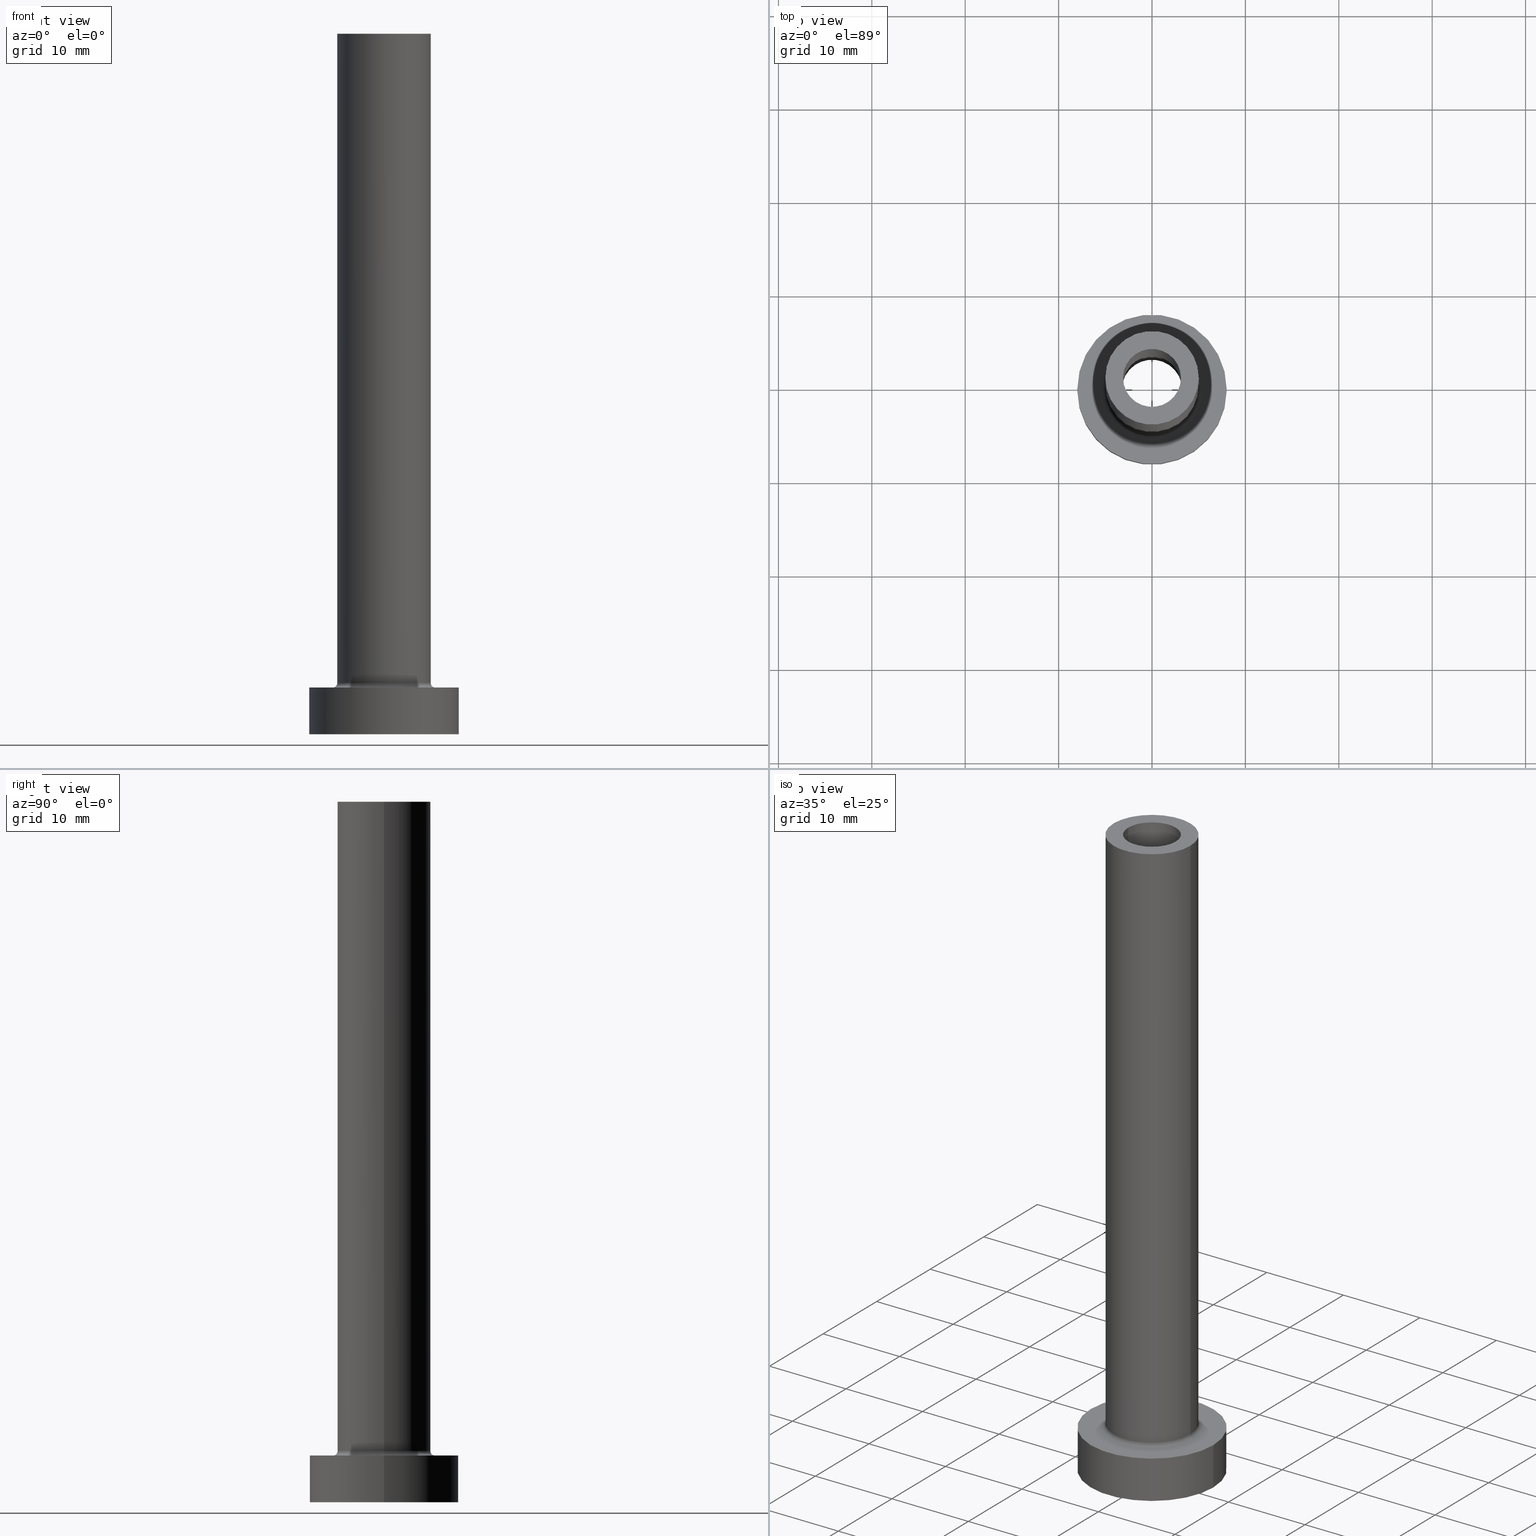
[diagram: canonical four-view strip — front | top / right | iso, engineering-drawing reading convention]
A machine part, canonical four-view strip (front | top / right | iso — engineering-drawing reading convention). The complete STEP part file that produces these views, byte-faithful:
ISO-10303-21;
HEADER;
FILE_DESCRIPTION (( 'STEP AP203' ),
    '1' );
FILE_NAME ('97cf.STEP',
    '2023-02-13T09:13:20',
    ( '' ),
    ( '' ),
    'SwSTEP 2.0',
    'SolidWorks 2019',
    '' );
FILE_SCHEMA (( 'CONFIG_CONTROL_DESIGN' ));
ENDSEC;

DATA;
#1 = CARTESIAN_POINT ( 'NONE',  ( 0.000000000000000000, 0.000000000000000000, 5.500000000000005329 ) ) ;
#2 = DIRECTION ( 'NONE',  ( -1.000000000000000000, 0.000000000000000000, 0.000000000000000000 ) ) ;
#3 = VERTEX_POINT ( 'NONE', #434 ) ;
#4 = CIRCLE ( 'NONE', #108, 5.500000000000000000 ) ;
#5 = DIRECTION ( 'NONE',  ( 0.000000000000000000, 0.000000000000000000, -1.000000000000000000 ) ) ;
#6 = EDGE_LOOP ( 'NONE', ( #386, #33 ) ) ;
#7 = DIRECTION ( 'NONE',  ( 1.000000000000000000, 0.000000000000000000, 0.000000000000000000 ) ) ;
#8 = ADVANCED_FACE ( 'NONE', ( #395 ), #402, .F. ) ;
#9 = DIRECTION ( 'NONE',  ( 1.000000000000000000, 0.000000000000000000, -0.000000000000000000 ) ) ;
#10 = AXIS2_PLACEMENT_3D ( 'NONE', #92, #443, #329 ) ;
#11 = CARTESIAN_POINT ( 'NONE',  ( 3.250000000000000444, 3.980102097228898231E-16, 0.000000000000000000 ) ) ;
#12 = VECTOR ( 'NONE', #167, 1000.000000000000000 ) ;
#13 =( NAMED_UNIT ( * ) PLANE_ANGLE_UNIT ( ) SI_UNIT ( $, .RADIAN. ) );
#14 = ORIENTED_EDGE ( 'NONE', *, *, #310, .F. ) ;
#15 = CIRCLE ( 'NONE', #237, 3.250000000000000444 ) ;
#16 = EDGE_CURVE ( 'NONE', #136, #439, #296, .T. ) ;
#17 = FACE_OUTER_BOUND ( 'NONE', #88, .T. ) ;
#18 = VERTEX_POINT ( 'NONE', #426 ) ;
#19 = CARTESIAN_POINT ( 'NONE',  ( 0.000000000000000000, 0.000000000000000000, 5.500000000000005329 ) ) ;
#20 = CIRCLE ( 'NONE', #171, 8.000000000000000000 ) ;
#21 = DIRECTION ( 'NONE',  ( 1.000000000000000000, 0.000000000000000000, 0.000000000000000000 ) ) ;
#22 = PLANE ( 'NONE',  #99 ) ;
#23 = ADVANCED_FACE ( 'NONE', ( #257 ), #248, .F. ) ;
#24 = VECTOR ( 'NONE', #380, 1000.000000000000000 ) ;
#25 = APPROVAL_ROLE ( '' ) ;
#26 = CIRCLE ( 'NONE', #267, 5.500000000000000000 ) ;
#27 = DATE_AND_TIME ( #414, #317 ) ;
#28 = EDGE_CURVE ( 'NONE', #252, #291, #4, .T. ) ;
#29 = ORIENTED_EDGE ( 'NONE', *, *, #324, .F. ) ;
#30 = PERSON ( 'NEUR�EN�', 'NEUR�EN�', 'NEUR�EN�', ('NEUR�EN�'), ('NEUR�EN�'), ('NEUR�EN�') ) ;
#31 = CIRCLE ( 'NONE', #48, 5.000000000000000000 ) ;
#32 = DIRECTION ( 'NONE',  ( 0.000000000000000000, 0.000000000000000000, -1.000000000000000000 ) ) ;
#33 = ORIENTED_EDGE ( 'NONE', *, *, #28, .T. ) ;
#34 = DATE_AND_TIME ( #306, #446 ) ;
#35 =( GEOMETRIC_REPRESENTATION_CONTEXT ( 3 ) GLOBAL_UNCERTAINTY_ASSIGNED_CONTEXT ( ( #192 ) ) GLOBAL_UNIT_ASSIGNED_CONTEXT ( ( #129, #13, #396 ) ) REPRESENTATION_CONTEXT ( 'NONE', 'WORKASPACE' ) );
#36 = EDGE_CURVE ( 'NONE', #161, #309, #385, .T. ) ;
#37 = APPLICATION_CONTEXT ( 'configuration controlled 3d designs of mechanical parts and assemblies' ) ;
#38 = ORIENTED_EDGE ( 'NONE', *, *, #100, .T. ) ;
#39 = CARTESIAN_POINT ( 'NONE',  ( 3.100000000000000089, 3.796405077356793932E-16, 75.00000000000001421 ) ) ;
#40 = ORIENTED_EDGE ( 'NONE', *, *, #116, .F. ) ;
#41 = CARTESIAN_POINT ( 'NONE',  ( 0.000000000000000000, 0.000000000000000000, 5.000000000000000000 ) ) ;
#42 = DIRECTION ( 'NONE',  ( -0.000000000000000000, -0.000000000000000000, -1.000000000000000000 ) ) ;
#43 = DIRECTION ( 'NONE',  ( -0.000000000000000000, -0.000000000000000000, -1.000000000000000000 ) ) ;
#44 = ADVANCED_FACE ( 'NONE', ( #351 ), #255, .T. ) ;
#45 = ORIENTED_EDGE ( 'NONE', *, *, #324, .T. ) ;
#46 = ORIENTED_EDGE ( 'NONE', *, *, #444, .F. ) ;
#47 = DIRECTION ( 'NONE',  ( 0.000000000000000000, 0.000000000000000000, 1.000000000000000000 ) ) ;
#48 = AXIS2_PLACEMENT_3D ( 'NONE', #448, #97, #298 ) ;
#49 = DIRECTION ( 'NONE',  ( 0.000000000000000000, 0.000000000000000000, 1.000000000000000000 ) ) ;
#50 = VERTEX_POINT ( 'NONE', #89 ) ;
#51 = CARTESIAN_POINT ( 'NONE',  ( -5.500000000000000000, 6.735557395310442023E-16, 5.500000000000005329 ) ) ;
#52 = EDGE_CURVE ( 'NONE', #330, #245, #153, .T. ) ;
#53 = CARTESIAN_POINT ( 'NONE',  ( 3.100000000000000089, 3.796405077356793932E-16, 30.00000000000001421 ) ) ;
#54 = ORIENTED_EDGE ( 'NONE', *, *, #384, .T. ) ;
#55 = DIRECTION ( 'NONE',  ( -0.000000000000000000, -0.000000000000000000, -1.000000000000000000 ) ) ;
#56 = FACE_OUTER_BOUND ( 'NONE', #76, .T. ) ;
#57 = DIRECTION ( 'NONE',  ( 1.000000000000000000, 0.000000000000000000, 0.000000000000000000 ) ) ;
#58 = FACE_BOUND ( 'NONE', #6, .T. ) ;
#59 = APPROVAL ( #407, 'NEUR�EN�' ) ;
#60 = DIRECTION ( 'NONE',  ( 1.000000000000000000, 0.000000000000000000, -0.000000000000000000 ) ) ;
#61 = CIRCLE ( 'NONE', #313, 3.100000000000000089 ) ;
#62 = APPLICATION_PROTOCOL_DEFINITION ( 'international standard', 'config_control_design', 1994, #85 ) ;
#63 = SECURITY_CLASSIFICATION ( '', '', #308 ) ;
#64 = EDGE_CURVE ( 'NONE', #202, #252, #254, .T. ) ;
#65 = PERSON_AND_ORGANIZATION_ROLE ( 'design_supplier' ) ;
#66 = LINE ( 'NONE', #340, #372 ) ;
#67 = PERSON_AND_ORGANIZATION_ROLE ( 'creator' ) ;
#68 = AXIS2_PLACEMENT_3D ( 'NONE', #155, #354, #281 ) ;
#69 = CARTESIAN_POINT ( 'NONE',  ( 8.000000000000000000, 9.797174393178825657E-16, 5.000000000000000000 ) ) ;
#70 = ORIENTED_EDGE ( 'NONE', *, *, #239, .F. ) ;
#71 = CARTESIAN_POINT ( 'NONE',  ( -5.000000000000000000, 0.000000000000000000, 75.00000000000001421 ) ) ;
#72 = EDGE_CURVE ( 'NONE', #376, #245, #61, .T. ) ;
#73 = CARTESIAN_POINT ( 'NONE',  ( 0.000000000000000000, 0.000000000000000000, 0.000000000000000000 ) ) ;
#74 = CC_DESIGN_PERSON_AND_ORGANIZATION_ASSIGNMENT ( #450, #230, ( #63 ) ) ;
#75 = CARTESIAN_POINT ( 'NONE',  ( 0.000000000000000000, 0.000000000000000000, 30.00000000000001421 ) ) ;
#76 = EDGE_LOOP ( 'NONE', ( #327, #433, #14, #177 ) ) ;
#77 = ADVANCED_BREP_SHAPE_REPRESENTATION ( '97cf', ( #377, #441 ), #35 ) ;
#78 = CYLINDRICAL_SURFACE ( 'NONE', #157, 3.250000000000000444 ) ;
#79 = VERTEX_POINT ( 'NONE', #185 ) ;
#80 = ORIENTED_EDGE ( 'NONE', *, *, #369, .F. ) ;
#81 = CARTESIAN_POINT ( 'NONE',  ( 0.000000000000000000, 0.000000000000000000, 5.000000000000000000 ) ) ;
#82 = VERTEX_POINT ( 'NONE', #11 ) ;
#83 = ORIENTED_EDGE ( 'NONE', *, *, #36, .T. ) ;
#84 = CARTESIAN_POINT ( 'NONE',  ( 0.000000000000000000, 0.000000000000000000, 75.00000000000001421 ) ) ;
#85 = APPLICATION_CONTEXT ( 'configuration controlled 3d designs of mechanical parts and assemblies' ) ;
#86 = CARTESIAN_POINT ( 'NONE',  ( 0.000000000000000000, 0.000000000000000000, 75.00000000000001421 ) ) ;
#87 = CARTESIAN_POINT ( 'NONE',  ( 0.000000000000000000, 0.000000000000000000, 30.00000000000001421 ) ) ;
#88 = EDGE_LOOP ( 'NONE', ( #46, #314, #80, #359 ) ) ;
#89 = CARTESIAN_POINT ( 'NONE',  ( -3.250000000000000444, 0.000000000000000000, 0.000000000000000000 ) ) ;
#90 = ADVANCED_FACE ( 'NONE', ( #159, #124 ), #22, .T. ) ;
#91 = LOCAL_TIME ( 10, 13, 20.00000000000000000, #337 ) ;
#92 = CARTESIAN_POINT ( 'NONE',  ( 0.000000000000000000, 0.000000000000000000, 75.00000000000001421 ) ) ;
#93 = DIRECTION ( 'NONE',  ( 0.000000000000000000, 0.000000000000000000, 1.000000000000000000 ) ) ;
#94 = CARTESIAN_POINT ( 'NONE',  ( 0.000000000000000000, 0.000000000000000000, 75.00000000000001421 ) ) ;
#95 = EDGE_CURVE ( 'NONE', #305, #174, #15, .T. ) ;
#96 = CARTESIAN_POINT ( 'NONE',  ( 0.000000000000000000, 0.000000000000000000, 0.000000000000000000 ) ) ;
#97 = DIRECTION ( 'NONE',  ( 0.000000000000000000, 0.000000000000000000, 1.000000000000000000 ) ) ;
#98 = AXIS2_PLACEMENT_3D ( 'NONE', #209, #320, #2 ) ;
#99 = AXIS2_PLACEMENT_3D ( 'NONE', #265, #93, #198 ) ;
#100 = EDGE_CURVE ( 'NONE', #256, #202, #31, .T. ) ;
#101 = CIRCLE ( 'NONE', #356, 8.000000000000000000 ) ;
#102 = PERSON_AND_ORGANIZATION ( #30, #287 ) ;
#103 = APPROVAL_PERSON_ORGANIZATION ( #199, #139, #271 ) ;
#104 = CALENDAR_DATE ( 2023, 13, 2 ) ;
#105 = ORIENTED_EDGE ( 'NONE', *, *, #132, .F. ) ;
#106 = EDGE_CURVE ( 'NONE', #309, #3, #367, .T. ) ;
#107 = PERSON_AND_ORGANIZATION_ROLE ( 'creator' ) ;
#108 = AXIS2_PLACEMENT_3D ( 'NONE', #41, #423, #388 ) ;
#109 = MECHANICAL_CONTEXT ( 'NONE', #37, 'mechanical' ) ;
#110 = DIRECTION ( 'NONE',  ( 0.000000000000000000, 0.000000000000000000, 1.000000000000000000 ) ) ;
#111 = ORIENTED_EDGE ( 'NONE', *, *, #390, .F. ) ;
#112 = CIRCLE ( 'NONE', #344, 8.000000000000000000 ) ;
#113 = DIRECTION ( 'NONE',  ( 0.000000000000000000, 0.000000000000000000, 1.000000000000000000 ) ) ;
#114 = CARTESIAN_POINT ( 'NONE',  ( 5.000000000000000000, 6.123233995736766282E-16, 5.500000000000005329 ) ) ;
#115 = DIRECTION ( 'NONE',  ( 0.000000000000000000, 0.000000000000000000, 1.000000000000000000 ) ) ;
#116 = EDGE_CURVE ( 'NONE', #50, #82, #292, .T. ) ;
#117 = DIRECTION ( 'NONE',  ( -0.000000000000000000, -0.000000000000000000, -1.000000000000000000 ) ) ;
#118 = EDGE_LOOP ( 'NONE', ( #54, #326, #383, #288 ) ) ;
#119 = AXIS2_PLACEMENT_3D ( 'NONE', #231, #145, #276 ) ;
#120 = CIRCLE ( 'NONE', #417, 3.250000000000000444 ) ;
#121 = CARTESIAN_POINT ( 'NONE',  ( 3.250000000000000444, 3.980102097228898231E-16, 30.00000000000001421 ) ) ;
#122 = EDGE_CURVE ( 'NONE', #330, #79, #299, .T. ) ;
#123 = FACE_OUTER_BOUND ( 'NONE', #457, .T. ) ;
#124 = FACE_OUTER_BOUND ( 'NONE', #188, .T. ) ;
#125 = DIRECTION ( 'NONE',  ( 0.000000000000000000, 0.000000000000000000, 1.000000000000000000 ) ) ;
#126 = DIRECTION ( 'NONE',  ( 0.000000000000000000, 0.000000000000000000, 1.000000000000000000 ) ) ;
#127 = DIRECTION ( 'NONE',  ( -0.000000000000000000, -0.000000000000000000, -1.000000000000000000 ) ) ;
#128 = ORIENTED_EDGE ( 'NONE', *, *, #227, .F. ) ;
#129 =( LENGTH_UNIT ( ) NAMED_UNIT ( * ) SI_UNIT ( .MILLI., .METRE. ) );
#130 = DIRECTION ( 'NONE',  ( 1.000000000000000000, 0.000000000000000000, 0.000000000000000000 ) ) ;
#131 = VECTOR ( 'NONE', #42, 1000.000000000000000 ) ;
#132 = EDGE_CURVE ( 'NONE', #18, #3, #101, .T. ) ;
#133 = CARTESIAN_POINT ( 'NONE',  ( -8.000000000000000000, 0.000000000000000000, 5.000000000000000000 ) ) ;
#134 = AXIS2_PLACEMENT_3D ( 'NONE', #1, #47, #437 ) ;
#135 = PERSON_AND_ORGANIZATION ( #30, #287 ) ;
#136 = VERTEX_POINT ( 'NONE', #71 ) ;
#137 = DATE_TIME_ROLE ( 'classification_date' ) ;
#138 = DIRECTION ( 'NONE',  ( 1.000000000000000000, 0.000000000000000000, 0.000000000000000000 ) ) ;
#139 = APPROVAL ( #170, 'NEUR�EN�' ) ;
#140 = AXIS2_PLACEMENT_3D ( 'NONE', #81, #117, #280 ) ;
#141 = DATE_AND_TIME ( #104, #389 ) ;
#142 = LINE ( 'NONE', #234, #24 ) ;
#143 = EDGE_LOOP ( 'NONE', ( #420, #429, #247, #381 ) ) ;
#144 = DATE_AND_TIME ( #341, #166 ) ;
#145 = DIRECTION ( 'NONE',  ( 0.000000000000000000, 0.000000000000000000, 1.000000000000000000 ) ) ;
#146 = EDGE_LOOP ( 'NONE', ( #40, #180 ) ) ;
#147 = CARTESIAN_POINT ( 'NONE',  ( 0.000000000000000000, 0.000000000000000000, 0.000000000000000000 ) ) ;
#148 = ORIENTED_EDGE ( 'NONE', *, *, #196, .F. ) ;
#149 = AXIS2_PLACEMENT_3D ( 'NONE', #445, #165, #404 ) ;
#150 = EDGE_CURVE ( 'NONE', #174, #50, #142, .T. ) ;
#151 = CARTESIAN_POINT ( 'NONE',  ( -5.000000000000000000, 0.000000000000000000, 75.00000000000001421 ) ) ;
#152 = CLOSED_SHELL ( 'NONE', ( #419, #23, #440, #44, #274, #223, #349, #452, #204, #90, #8, #249, #263, #406 ) ) ;
#153 = LINE ( 'NONE', #181, #393 ) ;
#154 = DIRECTION ( 'NONE',  ( -1.000000000000000000, 0.000000000000000000, 0.000000000000000000 ) ) ;
#155 = CARTESIAN_POINT ( 'NONE',  ( 0.000000000000000000, 0.000000000000000000, 39.19238815542512810 ) ) ;
#156 = EDGE_CURVE ( 'NONE', #161, #18, #66, .T. ) ;
#157 = AXIS2_PLACEMENT_3D ( 'NONE', #315, #214, #154 ) ;
#158 = CARTESIAN_POINT ( 'NONE',  ( 0.000000000000000000, 0.000000000000000000, 75.00000000000001421 ) ) ;
#159 = FACE_BOUND ( 'NONE', #375, .T. ) ;
#160 = CARTESIAN_POINT ( 'NONE',  ( 0.000000000000000000, 0.000000000000000000, 75.00000000000001421 ) ) ;
#161 = VERTEX_POINT ( 'NONE', #69 ) ;
#162 = FACE_OUTER_BOUND ( 'NONE', #163, .T. ) ;
#163 = EDGE_LOOP ( 'NONE', ( #29, #105 ) ) ;
#164 = CIRCLE ( 'NONE', #387, 0.5000000000000004441 ) ;
#165 = DIRECTION ( 'NONE',  ( 0.000000000000000000, 0.000000000000000000, 1.000000000000000000 ) ) ;
#166 = LOCAL_TIME ( 10, 13, 20.00000000000000000, #373 ) ;
#167 = DIRECTION ( 'NONE',  ( -0.000000000000000000, -0.000000000000000000, -1.000000000000000000 ) ) ;
#168 = CARTESIAN_POINT ( 'NONE',  ( 0.000000000000000000, 0.000000000000000000, 5.000000000000000000 ) ) ;
#169 = CC_DESIGN_PERSON_AND_ORGANIZATION_ASSIGNMENT ( #269, #370, ( #284 ) ) ;
#170 = APPROVAL_STATUS ( 'not_yet_approved' ) ;
#171 = AXIS2_PLACEMENT_3D ( 'NONE', #147, #113, #241 ) ;
#172 = PERSON_AND_ORGANIZATION ( #30, #287 ) ;
#173 = DIRECTION ( 'NONE',  ( 1.000000000000000000, 0.000000000000000000, 0.000000000000000000 ) ) ;
#174 = VERTEX_POINT ( 'NONE', #205 ) ;
#175 = LINE ( 'NONE', #408, #451 ) ;
#176 = CARTESIAN_POINT ( 'NONE',  ( -3.100000000000000089, 0.000000000000000000, 30.00000000000001421 ) ) ;
#177 = ORIENTED_EDGE ( 'NONE', *, *, #52, .F. ) ;
#178 = FACE_BOUND ( 'NONE', #244, .T. ) ;
#179 = DIRECTION ( 'NONE',  ( -0.000000000000000000, -0.000000000000000000, -1.000000000000000000 ) ) ;
#180 = ORIENTED_EDGE ( 'NONE', *, *, #338, .F. ) ;
#181 = CARTESIAN_POINT ( 'NONE',  ( -3.100000000000000089, 0.000000000000000000, 75.00000000000001421 ) ) ;
#182 = EDGE_CURVE ( 'NONE', #256, #291, #164, .T. ) ;
#183 = PLANE ( 'NONE',  #293 ) ;
#184 = ORIENTED_EDGE ( 'NONE', *, *, #384, .F. ) ;
#185 = CARTESIAN_POINT ( 'NONE',  ( 3.100000000000000089, 3.796405077356793932E-16, 75.00000000000001421 ) ) ;
#186 = VECTOR ( 'NONE', #5, 1000.000000000000000 ) ;
#187 = DIRECTION ( 'NONE',  ( 1.000000000000000000, 0.000000000000000000, 0.000000000000000000 ) ) ;
#188 = EDGE_LOOP ( 'NONE', ( #343, #218 ) ) ;
#189 = DIRECTION ( 'NONE',  ( 0.000000000000000000, 0.000000000000000000, 1.000000000000000000 ) ) ;
#190 = CYLINDRICAL_SURFACE ( 'NONE', #10, 3.100000000000000089 ) ;
#191 = ORIENTED_EDGE ( 'NONE', *, *, #16, .F. ) ;
#192 = UNCERTAINTY_MEASURE_WITH_UNIT (LENGTH_MEASURE( 1.000000000000000082E-05 ), #129, 'distance_accuracy_value', 'NONE');
#193 = DIRECTION ( 'NONE',  ( 1.000000000000000000, 0.000000000000000000, 0.000000000000000000 ) ) ;
#194 = DIRECTION ( 'NONE',  ( 0.000000000000000000, 0.000000000000000000, -1.000000000000000000 ) ) ;
#195 = CC_DESIGN_APPROVAL ( #328, ( #63 ) ) ;
#196 = EDGE_CURVE ( 'NONE', #305, #82, #175, .T. ) ;
#197 = DIRECTION ( 'NONE',  ( 1.000000000000000000, 0.000000000000000000, 0.000000000000000000 ) ) ;
#198 = DIRECTION ( 'NONE',  ( 1.000000000000000000, 0.000000000000000000, -0.000000000000000000 ) ) ;
#199 = PERSON_AND_ORGANIZATION ( #30, #287 ) ;
#200 = PRODUCT_DEFINITION_FORMATION_WITH_SPECIFIED_SOURCE ( 'LIBOVOLN�', '', #284, .NOT_KNOWN. ) ;
#201 = APPROVAL_DATE_TIME ( #34, #59 ) ;
#202 = VERTEX_POINT ( 'NONE', #456 ) ;
#203 = AXIS2_PLACEMENT_3D ( 'NONE', #211, #126, #316 ) ;
#204 = ADVANCED_FACE ( 'NONE', ( #282 ), #250, .T. ) ;
#205 = CARTESIAN_POINT ( 'NONE',  ( -3.250000000000000444, 0.000000000000000000, 30.00000000000001421 ) ) ;
#206 = AXIS2_PLACEMENT_3D ( 'NONE', #398, #332, #57 ) ;
#207 = CIRCLE ( 'NONE', #339, 3.250000000000000444 ) ;
#208 = CARTESIAN_POINT ( 'NONE',  ( -3.100000000000000089, 0.000000000000000000, 75.00000000000001421 ) ) ;
#209 = CARTESIAN_POINT ( 'NONE',  ( 0.000000000000000000, 0.000000000000000000, 5.000000000000000000 ) ) ;
#210 = ORIENTED_EDGE ( 'NONE', *, *, #72, .T. ) ;
#211 = CARTESIAN_POINT ( 'NONE',  ( 0.000000000000000000, 0.000000000000000000, 75.00000000000001421 ) ) ;
#212 = AXIS2_PLACEMENT_3D ( 'NONE', #84, #179, #346 ) ;
#213 = CARTESIAN_POINT ( 'NONE',  ( 0.000000000000000000, 0.000000000000000000, 5.000000000000000000 ) ) ;
#214 = DIRECTION ( 'NONE',  ( 0.000000000000000000, 0.000000000000000000, -1.000000000000000000 ) ) ;
#215 = AXIS2_PLACEMENT_3D ( 'NONE', #86, #43, #318 ) ;
#216 = DIRECTION ( 'NONE',  ( 1.000000000000000000, 0.000000000000000000, 0.000000000000000000 ) ) ;
#217 = CARTESIAN_POINT ( 'NONE',  ( -8.000000000000000000, 0.000000000000000000, 5.000000000000000000 ) ) ;
#218 = ORIENTED_EDGE ( 'NONE', *, *, #283, .T. ) ;
#219 = ORIENTED_EDGE ( 'NONE', *, *, #150, .T. ) ;
#220 = AXIS2_PLACEMENT_3D ( 'NONE', #168, #335, #361 ) ;
#221 = CARTESIAN_POINT ( 'NONE',  ( 0.000000000000000000, 0.000000000000000000, 5.000000000000000000 ) ) ;
#222 = ORIENTED_EDGE ( 'NONE', *, *, #310, .T. ) ;
#223 = ADVANCED_FACE ( 'NONE', ( #325 ), #322, .T. ) ;
#224 = FACE_BOUND ( 'NONE', #146, .T. ) ;
#225 = CARTESIAN_POINT ( 'NONE',  ( 0.000000000000000000, 0.000000000000000000, 30.00000000000001421 ) ) ;
#226 = PLANE ( 'NONE',  #279 ) ;
#227 = EDGE_CURVE ( 'NONE', #309, #161, #112, .T. ) ;
#228 = CIRCLE ( 'NONE', #232, 3.100000000000000089 ) ;
#229 = PLANE ( 'NONE',  #220 ) ;
#230 = PERSON_AND_ORGANIZATION_ROLE ( 'classification_officer' ) ;
#231 = CARTESIAN_POINT ( 'NONE',  ( 0.000000000000000000, 0.000000000000000000, 75.00000000000001421 ) ) ;
#232 = AXIS2_PLACEMENT_3D ( 'NONE', #94, #442, #197 ) ;
#233 = SHAPE_DEFINITION_REPRESENTATION ( #290, #77 ) ;
#234 = CARTESIAN_POINT ( 'NONE',  ( -3.250000000000000444, 0.000000000000000000, 39.19238815542512810 ) ) ;
#235 = ORIENTED_EDGE ( 'NONE', *, *, #390, .T. ) ;
#236 = COORDINATED_UNIVERSAL_TIME_OFFSET ( 1, 0, .AHEAD. ) ;
#237 = AXIS2_PLACEMENT_3D ( 'NONE', #225, #363, #302 ) ;
#238 = PERSON_AND_ORGANIZATION ( #30, #287 ) ;
#239 = EDGE_CURVE ( 'NONE', #79, #376, #382, .T. ) ;
#240 = AXIS2_PLACEMENT_3D ( 'NONE', #19, #125, #193 ) ;
#241 = DIRECTION ( 'NONE',  ( 1.000000000000000000, 0.000000000000000000, 0.000000000000000000 ) ) ;
#242 = CC_DESIGN_DATE_AND_TIME_ASSIGNMENT ( #144, #137, ( #63 ) ) ;
#243 = ORIENTED_EDGE ( 'NONE', *, *, #156, .F. ) ;
#244 = EDGE_LOOP ( 'NONE', ( #222, #210 ) ) ;
#245 = VERTEX_POINT ( 'NONE', #176 ) ;
#246 = DIRECTION ( 'NONE',  ( 1.000000000000000000, 0.000000000000000000, 0.000000000000000000 ) ) ;
#247 = ORIENTED_EDGE ( 'NONE', *, *, #132, .T. ) ;
#248 = CYLINDRICAL_SURFACE ( 'NONE', #68, 3.250000000000000444 ) ;
#249 = ADVANCED_FACE ( 'NONE', ( #277 ), #78, .F. ) ;
#250 = CYLINDRICAL_SURFACE ( 'NONE', #212, 5.000000000000000000 ) ;
#251 = ORIENTED_EDGE ( 'NONE', *, *, #444, .T. ) ;
#252 = VERTEX_POINT ( 'NONE', #350 ) ;
#253 = CARTESIAN_POINT ( 'NONE',  ( 0.000000000000000000, 0.000000000000000000, 5.000000000000000000 ) ) ;
#254 = CIRCLE ( 'NONE', #336, 0.5000000000000004441 ) ;
#255 = CYLINDRICAL_SURFACE ( 'NONE', #215, 5.000000000000000000 ) ;
#256 = VERTEX_POINT ( 'NONE', #114 ) ;
#257 = FACE_OUTER_BOUND ( 'NONE', #118, .T. ) ;
#258 = EDGE_CURVE ( 'NONE', #136, #202, #461, .T. ) ;
#259 = CC_DESIGN_APPROVAL ( #59, ( #200 ) ) ;
#260 = DIRECTION ( 'NONE',  ( -0.000000000000000000, -0.000000000000000000, -1.000000000000000000 ) ) ;
#261 = ORIENTED_EDGE ( 'NONE', *, *, #28, .F. ) ;
#262 = CC_DESIGN_PERSON_AND_ORGANIZATION_ASSIGNMENT ( #102, #65, ( #200 ) ) ;
#263 = ADVANCED_FACE ( 'NONE', ( #178, #123 ), #183, .F. ) ;
#264 = FACE_OUTER_BOUND ( 'NONE', #278, .T. ) ;
#265 = CARTESIAN_POINT ( 'NONE',  ( 0.000000000000000000, 0.000000000000000000, 75.00000000000001421 ) ) ;
#266 = CIRCLE ( 'NONE', #149, 5.000000000000000000 ) ;
#267 = AXIS2_PLACEMENT_3D ( 'NONE', #221, #260, #21 ) ;
#268 = CARTESIAN_POINT ( 'NONE',  ( 5.500000000000000000, 0.000000000000000000, 5.500000000000005329 ) ) ;
#269 = PERSON_AND_ORGANIZATION ( #30, #287 ) ;
#270 = CC_DESIGN_PERSON_AND_ORGANIZATION_ASSIGNMENT ( #172, #107, ( #304 ) ) ;
#271 = APPROVAL_ROLE ( '' ) ;
#272 = ORIENTED_EDGE ( 'NONE', *, *, #182, .T. ) ;
#273 = COORDINATED_UNIVERSAL_TIME_OFFSET ( 1, 0, .AHEAD. ) ;
#274 = ADVANCED_FACE ( 'NONE', ( #285 ), #418, .T. ) ;
#275 = PERSON_AND_ORGANIZATION ( #30, #287 ) ;
#276 = DIRECTION ( 'NONE',  ( 1.000000000000000000, 0.000000000000000000, 0.000000000000000000 ) ) ;
#277 = FACE_OUTER_BOUND ( 'NONE', #353, .T. ) ;
#278 = EDGE_LOOP ( 'NONE', ( #70, #400, #425, #397 ) ) ;
#279 = AXIS2_PLACEMENT_3D ( 'NONE', #294, #364, #60 ) ;
#280 = DIRECTION ( 'NONE',  ( -1.000000000000000000, 0.000000000000000000, 0.000000000000000000 ) ) ;
#281 = DIRECTION ( 'NONE',  ( -1.000000000000000000, 0.000000000000000000, 0.000000000000000000 ) ) ;
#282 = FACE_OUTER_BOUND ( 'NONE', #347, .T. ) ;
#283 = EDGE_CURVE ( 'NONE', #439, #136, #333, .T. ) ;
#284 = PRODUCT ( '97cf', '97cf', '', ( #109 ) ) ;
#285 = FACE_OUTER_BOUND ( 'NONE', #143, .T. ) ;
#286 = DIRECTION ( 'NONE',  ( -1.000000000000000000, 1.224646799147351482E-16, 0.000000000000000000 ) ) ;
#287 = ORGANIZATION ( 'NEUR�EN�', 'NEUR�EN�', '' ) ;
#288 = ORIENTED_EDGE ( 'NONE', *, *, #150, .F. ) ;
#289 = ORIENTED_EDGE ( 'NONE', *, *, #64, .F. ) ;
#290 = PRODUCT_DEFINITION_SHAPE ( 'NONE', 'NONE',  #304 ) ;
#291 = VERTEX_POINT ( 'NONE', #428 ) ;
#292 = CIRCLE ( 'NONE', #206, 3.250000000000000444 ) ;
#293 = AXIS2_PLACEMENT_3D ( 'NONE', #75, #424, #9 ) ;
#294 = CARTESIAN_POINT ( 'NONE',  ( 0.000000000000000000, 0.000000000000000000, 0.000000000000000000 ) ) ;
#295 = CARTESIAN_POINT ( 'NONE',  ( 5.000000000000000000, 6.123233995736766282E-16, 75.00000000000001421 ) ) ;
#296 = CIRCLE ( 'NONE', #203, 5.000000000000000000 ) ;
#297 = CARTESIAN_POINT ( 'NONE',  ( 0.000000000000000000, 0.000000000000000000, 30.00000000000001421 ) ) ;
#298 = DIRECTION ( 'NONE',  ( 1.000000000000000000, 0.000000000000000000, 0.000000000000000000 ) ) ;
#299 = CIRCLE ( 'NONE', #119, 3.100000000000000089 ) ;
#300 = APPROVAL_DATE_TIME ( #27, #139 ) ;
#301 = CIRCLE ( 'NONE', #431, 3.100000000000000089 ) ;
#302 = DIRECTION ( 'NONE',  ( 1.000000000000000000, 0.000000000000000000, 0.000000000000000000 ) ) ;
#303 = CALENDAR_DATE ( 2023, 13, 2 ) ;
#304 = PRODUCT_DEFINITION ( 'NEZN�M�', '', #200, #438 ) ;
#305 = VERTEX_POINT ( 'NONE', #121 ) ;
#306 = CALENDAR_DATE ( 2023, 13, 2 ) ;
#307 = VECTOR ( 'NONE', #55, 1000.000000000000000 ) ;
#308 = SECURITY_CLASSIFICATION_LEVEL ( 'unclassified' ) ;
#309 = VERTEX_POINT ( 'NONE', #217 ) ;
#310 = EDGE_CURVE ( 'NONE', #245, #376, #301, .T. ) ;
#311 = DIRECTION ( 'NONE',  ( 0.000000000000000000, 0.000000000000000000, 1.000000000000000000 ) ) ;
#312 = EDGE_LOOP ( 'NONE', ( #348, #235, #38, #436 ) ) ;
#313 = AXIS2_PLACEMENT_3D ( 'NONE', #430, #189, #216 ) ;
#314 = ORIENTED_EDGE ( 'NONE', *, *, #64, .T. ) ;
#315 = CARTESIAN_POINT ( 'NONE',  ( 0.000000000000000000, 0.000000000000000000, 39.19238815542512810 ) ) ;
#316 = DIRECTION ( 'NONE',  ( 1.000000000000000000, 0.000000000000000000, 0.000000000000000000 ) ) ;
#317 = LOCAL_TIME ( 10, 13, 20.00000000000000000, #273 ) ;
#318 = DIRECTION ( 'NONE',  ( -1.000000000000000000, 0.000000000000000000, 0.000000000000000000 ) ) ;
#319 = AXIS2_PLACEMENT_3D ( 'NONE', #213, #115, #7 ) ;
#320 = DIRECTION ( 'NONE',  ( -0.000000000000000000, -0.000000000000000000, -1.000000000000000000 ) ) ;
#321 = DIRECTION ( 'NONE',  ( 0.000000000000000000, 0.000000000000000000, -1.000000000000000000 ) ) ;
#322 = CYLINDRICAL_SURFACE ( 'NONE', #98, 8.000000000000000000 ) ;
#323 = ORIENTED_EDGE ( 'NONE', *, *, #458, .F. ) ;
#324 = EDGE_CURVE ( 'NONE', #3, #18, #20, .T. ) ;
#325 = FACE_OUTER_BOUND ( 'NONE', #413, .T. ) ;
#326 = ORIENTED_EDGE ( 'NONE', *, *, #196, .T. ) ;
#327 = ORIENTED_EDGE ( 'NONE', *, *, #122, .T. ) ;
#328 = APPROVAL ( #378, 'NEUR�EN�' ) ;
#329 = DIRECTION ( 'NONE',  ( -1.000000000000000000, 0.000000000000000000, 0.000000000000000000 ) ) ;
#330 = VERTEX_POINT ( 'NONE', #208 ) ;
#331 = DIRECTION ( 'NONE',  ( 0.000000000000000000, 0.000000000000000000, 1.000000000000000000 ) ) ;
#332 = DIRECTION ( 'NONE',  ( -0.000000000000000000, -0.000000000000000000, -1.000000000000000000 ) ) ;
#333 = CIRCLE ( 'NONE', #360, 5.000000000000000000 ) ;
#334 = LINE ( 'NONE', #295, #12 ) ;
#335 = DIRECTION ( 'NONE',  ( 0.000000000000000000, 0.000000000000000000, 1.000000000000000000 ) ) ;
#336 = AXIS2_PLACEMENT_3D ( 'NONE', #51, #392, #286 ) ;
#337 = COORDINATED_UNIVERSAL_TIME_OFFSET ( 1, 0, .AHEAD. ) ;
#338 = EDGE_CURVE ( 'NONE', #82, #50, #120, .T. ) ;
#339 = AXIS2_PLACEMENT_3D ( 'NONE', #297, #331, #130 ) ;
#340 = CARTESIAN_POINT ( 'NONE',  ( 8.000000000000000000, 9.797174393178825657E-16, 5.000000000000000000 ) ) ;
#341 = CALENDAR_DATE ( 2023, 13, 2 ) ;
#342 = DIRECTION ( 'NONE',  ( 0.000000000000000000, -1.000000000000000000, 0.000000000000000000 ) ) ;
#343 = ORIENTED_EDGE ( 'NONE', *, *, #16, .T. ) ;
#344 = AXIS2_PLACEMENT_3D ( 'NONE', #253, #49, #432 ) ;
#345 = ORIENTED_EDGE ( 'NONE', *, *, #116, .T. ) ;
#346 = DIRECTION ( 'NONE',  ( -1.000000000000000000, 0.000000000000000000, 0.000000000000000000 ) ) ;
#347 = EDGE_LOOP ( 'NONE', ( #111, #191, #410, #251 ) ) ;
#348 = ORIENTED_EDGE ( 'NONE', *, *, #283, .F. ) ;
#349 = ADVANCED_FACE ( 'NONE', ( #58, #368 ), #229, .T. ) ;
#350 = CARTESIAN_POINT ( 'NONE',  ( -5.500000000000000000, 6.735557395310442023E-16, 5.000000000000002665 ) ) ;
#351 = FACE_OUTER_BOUND ( 'NONE', #312, .T. ) ;
#352 = APPROVAL_PERSON_ORGANIZATION ( #238, #328, #25 ) ;
#353 = EDGE_LOOP ( 'NONE', ( #148, #415, #219, #345 ) ) ;
#354 = DIRECTION ( 'NONE',  ( 0.000000000000000000, 0.000000000000000000, -1.000000000000000000 ) ) ;
#355 = ORIENTED_EDGE ( 'NONE', *, *, #227, .T. ) ;
#356 = AXIS2_PLACEMENT_3D ( 'NONE', #416, #110, #138 ) ;
#357 = DIRECTION ( 'NONE',  ( 0.000000000000000000, 0.000000000000000000, 1.000000000000000000 ) ) ;
#358 = EDGE_LOOP ( 'NONE', ( #289, #421, #272, #261 ) ) ;
#359 = ORIENTED_EDGE ( 'NONE', *, *, #182, .F. ) ;
#360 = AXIS2_PLACEMENT_3D ( 'NONE', #158, #394, #246 ) ;
#361 = DIRECTION ( 'NONE',  ( 1.000000000000000000, 0.000000000000000000, -0.000000000000000000 ) ) ;
#362 = ORIENTED_EDGE ( 'NONE', *, *, #122, .F. ) ;
#363 = DIRECTION ( 'NONE',  ( 0.000000000000000000, 0.000000000000000000, 1.000000000000000000 ) ) ;
#364 = DIRECTION ( 'NONE',  ( 0.000000000000000000, 0.000000000000000000, 1.000000000000000000 ) ) ;
#365 = DIRECTION ( 'NONE',  ( 1.000000000000000000, 0.000000000000000000, 0.000000000000000000 ) ) ;
#366 = AXIS2_PLACEMENT_3D ( 'NONE', #160, #194, #435 ) ;
#367 = LINE ( 'NONE', #133, #307 ) ;
#368 = FACE_OUTER_BOUND ( 'NONE', #453, .T. ) ;
#369 = EDGE_CURVE ( 'NONE', #291, #252, #26, .T. ) ;
#370 = PERSON_AND_ORGANIZATION_ROLE ( 'design_owner' ) ;
#371 = DIRECTION ( 'NONE',  ( 0.000000000000000000, 0.000000000000000000, -1.000000000000000000 ) ) ;
#372 = VECTOR ( 'NONE', #374, 1000.000000000000000 ) ;
#373 = COORDINATED_UNIVERSAL_TIME_OFFSET ( 1, 0, .AHEAD. ) ;
#374 = DIRECTION ( 'NONE',  ( -0.000000000000000000, -0.000000000000000000, -1.000000000000000000 ) ) ;
#375 = EDGE_LOOP ( 'NONE', ( #362, #323 ) ) ;
#376 = VERTEX_POINT ( 'NONE', #53 ) ;
#377 = MANIFOLD_SOLID_BREP ( 'Odebrat vysunut�m4', #152 ) ;
#378 = APPROVAL_STATUS ( 'not_yet_approved' ) ;
#379 = CC_DESIGN_APPROVAL ( #139, ( #304 ) ) ;
#380 = DIRECTION ( 'NONE',  ( 0.000000000000000000, 0.000000000000000000, -1.000000000000000000 ) ) ;
#381 = ORIENTED_EDGE ( 'NONE', *, *, #106, .F. ) ;
#382 = LINE ( 'NONE', #39, #186 ) ;
#383 = ORIENTED_EDGE ( 'NONE', *, *, #338, .T. ) ;
#384 = EDGE_CURVE ( 'NONE', #174, #305, #207, .T. ) ;
#385 = CIRCLE ( 'NONE', #319, 8.000000000000000000 ) ;
#386 = ORIENTED_EDGE ( 'NONE', *, *, #369, .T. ) ;
#387 = AXIS2_PLACEMENT_3D ( 'NONE', #268, #342, #32 ) ;
#388 = DIRECTION ( 'NONE',  ( 1.000000000000000000, 0.000000000000000000, 0.000000000000000000 ) ) ;
#389 = LOCAL_TIME ( 10, 13, 20.00000000000000000, #447 ) ;
#390 = EDGE_CURVE ( 'NONE', #439, #256, #334, .T. ) ;
#391 = ORIENTED_EDGE ( 'NONE', *, *, #95, .F. ) ;
#392 = DIRECTION ( 'NONE',  ( 1.224646799147353207E-16, 1.000000000000000000, -0.000000000000000000 ) ) ;
#393 = VECTOR ( 'NONE', #321, 1000.000000000000000 ) ;
#394 = DIRECTION ( 'NONE',  ( 0.000000000000000000, 0.000000000000000000, 1.000000000000000000 ) ) ;
#395 = FACE_OUTER_BOUND ( 'NONE', #358, .T. ) ;
#396 =( NAMED_UNIT ( * ) SI_UNIT ( $, .STERADIAN. ) SOLID_ANGLE_UNIT ( ) );
#397 = ORIENTED_EDGE ( 'NONE', *, *, #72, .F. ) ;
#398 = CARTESIAN_POINT ( 'NONE',  ( 0.000000000000000000, 0.000000000000000000, 0.000000000000000000 ) ) ;
#399 = CYLINDRICAL_SURFACE ( 'NONE', #366, 3.100000000000000089 ) ;
#400 = ORIENTED_EDGE ( 'NONE', *, *, #458, .T. ) ;
#401 = CC_DESIGN_DATE_AND_TIME_ASSIGNMENT ( #449, #411, ( #304 ) ) ;
#402 = TOROIDAL_SURFACE ( 'NONE', #134, 5.500000000000000000, 0.5000000000000000000 ) ;
#403 = CARTESIAN_POINT ( 'NONE',  ( 5.000000000000000000, 6.123233995736766282E-16, 75.00000000000001421 ) ) ;
#404 = DIRECTION ( 'NONE',  ( 1.000000000000000000, 0.000000000000000000, 0.000000000000000000 ) ) ;
#405 = APPLICATION_PROTOCOL_DEFINITION ( 'international standard', 'config_control_design', 1994, #37 ) ;
#406 = ADVANCED_FACE ( 'NONE', ( #264 ), #399, .F. ) ;
#407 = APPROVAL_STATUS ( 'not_yet_approved' ) ;
#408 = CARTESIAN_POINT ( 'NONE',  ( 3.250000000000000444, 3.980102097228898231E-16, 39.19238815542512810 ) ) ;
#409 = APPROVAL_ROLE ( '' ) ;
#410 = ORIENTED_EDGE ( 'NONE', *, *, #258, .T. ) ;
#411 = DATE_TIME_ROLE ( 'creation_date' ) ;
#412 = TOROIDAL_SURFACE ( 'NONE', #240, 5.500000000000000000, 0.5000000000000000000 ) ;
#413 = EDGE_LOOP ( 'NONE', ( #243, #128, #459, #45 ) ) ;
#414 = CALENDAR_DATE ( 2023, 13, 2 ) ;
#415 = ORIENTED_EDGE ( 'NONE', *, *, #95, .T. ) ;
#416 = CARTESIAN_POINT ( 'NONE',  ( 0.000000000000000000, 0.000000000000000000, 0.000000000000000000 ) ) ;
#417 = AXIS2_PLACEMENT_3D ( 'NONE', #96, #127, #365 ) ;
#418 = CYLINDRICAL_SURFACE ( 'NONE', #140, 8.000000000000000000 ) ;
#419 = ADVANCED_FACE ( 'NONE', ( #56 ), #190, .F. ) ;
#420 = ORIENTED_EDGE ( 'NONE', *, *, #36, .F. ) ;
#421 = ORIENTED_EDGE ( 'NONE', *, *, #100, .F. ) ;
#422 = PRODUCT_RELATED_PRODUCT_CATEGORY ( 'detail', '', ( #284 ) ) ;
#423 = DIRECTION ( 'NONE',  ( -0.000000000000000000, -0.000000000000000000, -1.000000000000000000 ) ) ;
#424 = DIRECTION ( 'NONE',  ( 0.000000000000000000, 0.000000000000000000, 1.000000000000000000 ) ) ;
#425 = ORIENTED_EDGE ( 'NONE', *, *, #52, .T. ) ;
#426 = CARTESIAN_POINT ( 'NONE',  ( 8.000000000000000000, 9.797174393178825657E-16, 0.000000000000000000 ) ) ;
#427 = CC_DESIGN_PERSON_AND_ORGANIZATION_ASSIGNMENT ( #275, #67, ( #200 ) ) ;
#428 = CARTESIAN_POINT ( 'NONE',  ( 5.500000000000000000, 0.000000000000000000, 5.000000000000002665 ) ) ;
#429 = ORIENTED_EDGE ( 'NONE', *, *, #156, .T. ) ;
#430 = CARTESIAN_POINT ( 'NONE',  ( 0.000000000000000000, 0.000000000000000000, 30.00000000000001421 ) ) ;
#431 = AXIS2_PLACEMENT_3D ( 'NONE', #87, #357, #187 ) ;
#432 = DIRECTION ( 'NONE',  ( 1.000000000000000000, 0.000000000000000000, 0.000000000000000000 ) ) ;
#433 = ORIENTED_EDGE ( 'NONE', *, *, #239, .T. ) ;
#434 = CARTESIAN_POINT ( 'NONE',  ( -8.000000000000000000, 0.000000000000000000, 0.000000000000000000 ) ) ;
#435 = DIRECTION ( 'NONE',  ( -1.000000000000000000, 0.000000000000000000, 0.000000000000000000 ) ) ;
#436 = ORIENTED_EDGE ( 'NONE', *, *, #258, .F. ) ;
#437 = DIRECTION ( 'NONE',  ( 1.000000000000000000, 0.000000000000000000, 0.000000000000000000 ) ) ;
#438 = DESIGN_CONTEXT ( 'detailed design', #85, 'design' ) ;
#439 = VERTEX_POINT ( 'NONE', #403 ) ;
#440 = ADVANCED_FACE ( 'NONE', ( #17 ), #412, .F. ) ;
#441 = AXIS2_PLACEMENT_3D ( 'NONE', #73, #311, #173 ) ;
#442 = DIRECTION ( 'NONE',  ( 0.000000000000000000, 0.000000000000000000, 1.000000000000000000 ) ) ;
#443 = DIRECTION ( 'NONE',  ( 0.000000000000000000, 0.000000000000000000, -1.000000000000000000 ) ) ;
#444 = EDGE_CURVE ( 'NONE', #202, #256, #266, .T. ) ;
#445 = CARTESIAN_POINT ( 'NONE',  ( 0.000000000000000000, 0.000000000000000000, 5.500000000000005329 ) ) ;
#446 = LOCAL_TIME ( 10, 13, 20.00000000000000000, #236 ) ;
#447 = COORDINATED_UNIVERSAL_TIME_OFFSET ( 1, 0, .AHEAD. ) ;
#448 = CARTESIAN_POINT ( 'NONE',  ( 0.000000000000000000, 0.000000000000000000, 5.500000000000005329 ) ) ;
#449 = DATE_AND_TIME ( #303, #91 ) ;
#450 = PERSON_AND_ORGANIZATION ( #30, #287 ) ;
#451 = VECTOR ( 'NONE', #371, 1000.000000000000000 ) ;
#452 = ADVANCED_FACE ( 'NONE', ( #224, #162 ), #226, .F. ) ;
#453 = EDGE_LOOP ( 'NONE', ( #355, #83 ) ) ;
#454 = APPROVAL_DATE_TIME ( #141, #328 ) ;
#455 = CC_DESIGN_SECURITY_CLASSIFICATION ( #63, ( #200 ) ) ;
#456 = CARTESIAN_POINT ( 'NONE',  ( -5.000000000000000000, 0.000000000000000000, 5.500000000000005329 ) ) ;
#457 = EDGE_LOOP ( 'NONE', ( #184, #391 ) ) ;
#458 = EDGE_CURVE ( 'NONE', #79, #330, #228, .T. ) ;
#459 = ORIENTED_EDGE ( 'NONE', *, *, #106, .T. ) ;
#460 = APPROVAL_PERSON_ORGANIZATION ( #135, #59, #409 ) ;
#461 = LINE ( 'NONE', #151, #131 ) ;
ENDSEC;
END-ISO-10303-21;
